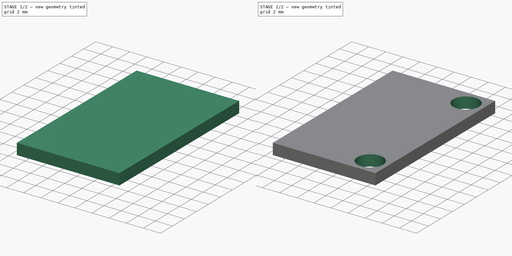
[diagram: build sequence overview — one tinted view per stage of 2, left to right]
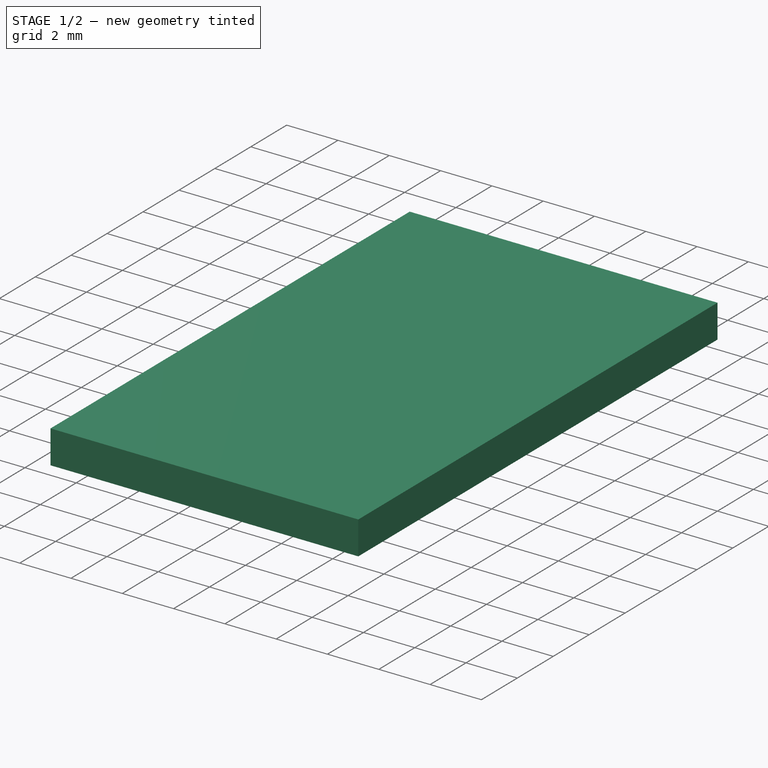
[diagram: stage 1 of 2 — iso view after this stage's code; geometry added in this stage tinted green]
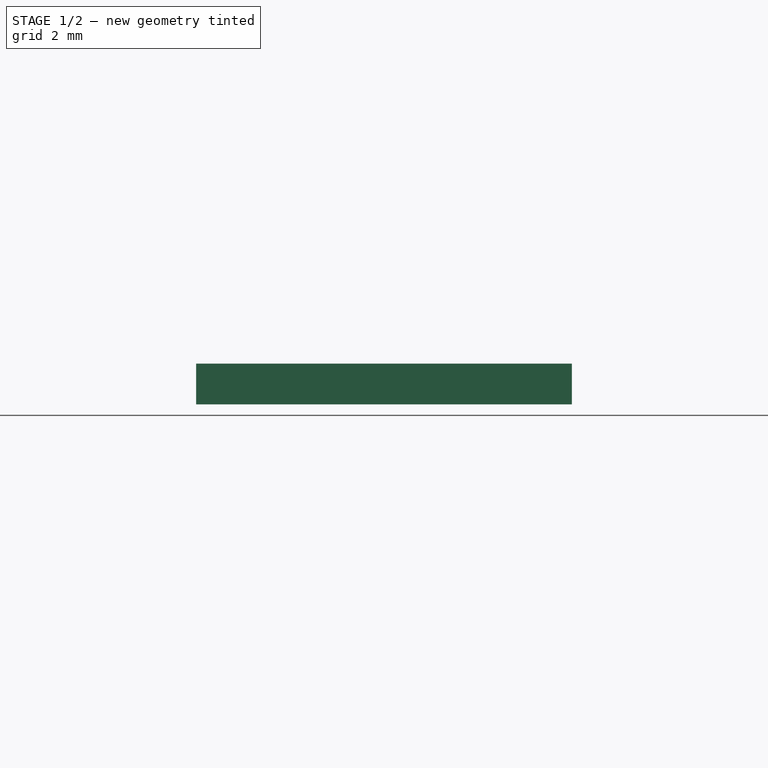
[diagram: stage 1 of 2 — front view after this stage's code; geometry added in this stage tinted green]
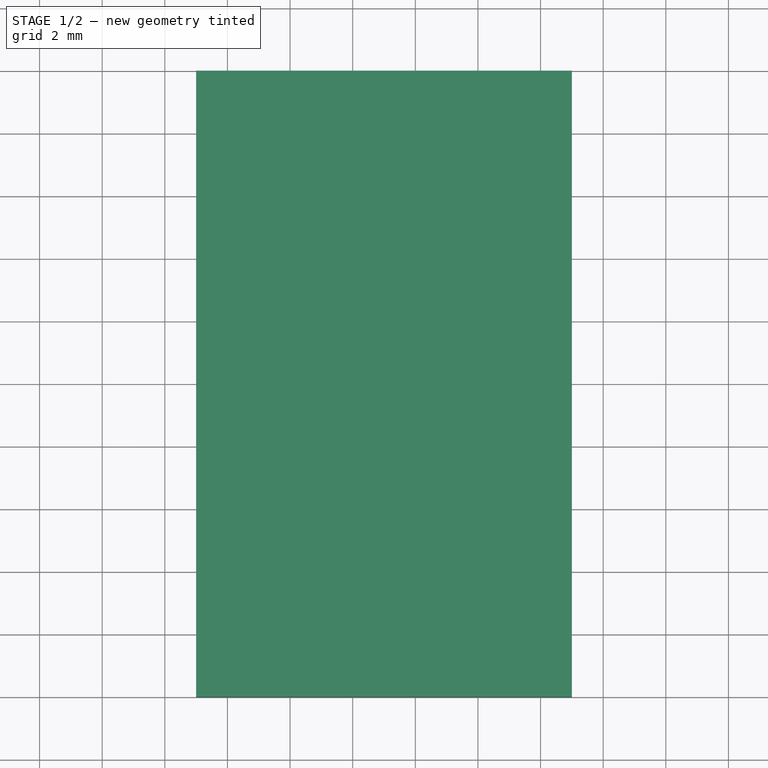
[diagram: stage 1 of 2 — top view after this stage's code; geometry added in this stage tinted green]
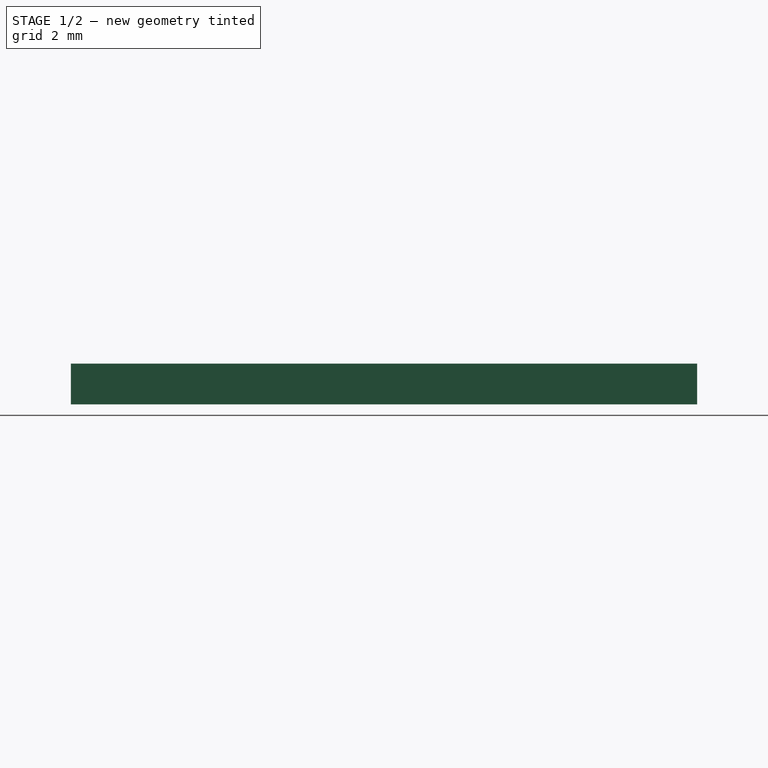
[diagram: stage 1 of 2 — right view after this stage's code; geometry added in this stage tinted green]
FCSTD DOCUMENT  (FreeCAD 1.0R38641 +678 (Git))
Label: spacer
License: All rights reserved
LicenseURL: https://en.wikipedia.org/wiki/All_rights_reserved
objects: Sketcher::SketchObject×2, PartDesign::Pad×1, PartDesign::Pocket×1, PartDesign::Body×1
note: 11 computed .brp shape members not serialized (recipe doc carries the construction recipe); baked Part::Feature solids carry a one-line shape summary decoded from their .brp

FEATURE [Sketcher::SketchObject] Sketch253
  ArcFitTolerance = 0
  FullyConstrained = true
  MakeInternals = false
  MapMode = 2
  Placement = pos=(0,0,-20) rot=(1,0,0;3.14159rad)
  sketch-geometry (8):
    g0: LineSegment [constr] StartX=-4 StartY=11 StartZ=0 EndX=-4 EndY=-11 EndZ=0
    g1: LineSegment [constr] StartX=-4 StartY=-11 StartZ=0 EndX=-29 EndY=-11 EndZ=0
    g2: LineSegment [constr] StartX=-4 StartY=11 StartZ=0 EndX=-29 EndY=11 EndZ=0
    g3: LineSegment [constr] StartX=-29 StartY=11 StartZ=0 EndX=-29 EndY=-11 EndZ=0
    g4: LineSegment StartX=-5 StartY=10 StartZ=0 EndX=-5 EndY=-10 EndZ=0
    g5: LineSegment StartX=-5 StartY=10 StartZ=0 EndX=-17 EndY=10 EndZ=0
    g6: LineSegment StartX=-17 StartY=10 StartZ=0 EndX=-17 EndY=-10 EndZ=0
    g7: LineSegment StartX=-17 StartY=-10 StartZ=0 EndX=-5 EndY=-10 EndZ=0
  constraints (24):
    c: Vertical(g0)
    c: Coincident(g1,g0)
    c: Horizontal(g1)
    c: Coincident(g2,g0)
    c: Horizontal(g2)
    c: Coincident(g3,g2)
    c: Coincident(g3,g1)
    c: Vertical(g3)
    c: Distance(g0) = 22
    c: Distance(g1) = 25
    c: Distance(g-1,g2) = 11
    c: Distance(g-1,g0) = 4
    c: Vertical(g4)
    c: Coincident(g5,g4)
    c: Horizontal(g5)
    c: Coincident(g6,g5)
    c: Vertical(g6)
    c: Coincident(g7,g6)
    c: Coincident(g7,g4)
    c: Horizontal(g7)
    c: DistanceY(g4,g4) = 20
    c: DistanceX(g5,g5) = 12
    c: Distance(g-1,g5) = 10
    c: Distance(g-1,g4) = 5
FEATURE [PartDesign::Pad] Pad126
  Direction = (0,-1e-16,-1)
  Length = 1.3
  Length2 = 10
  Placement = pos=(0,0,-20) rot=(1,0,0;3.14159rad)
  Profile = -> Sketch253
  ReferenceAxis = -> Sketch253 [N_Axis]
  Suppressed = false
  Type = 0
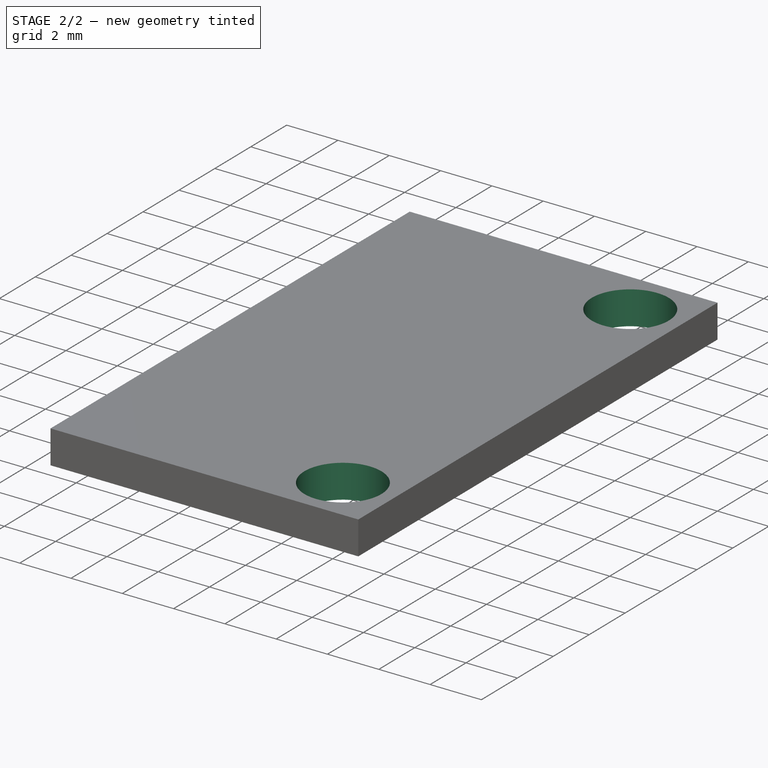
[diagram: stage 2 of 2 — iso view after this stage's code; geometry added in this stage tinted green]
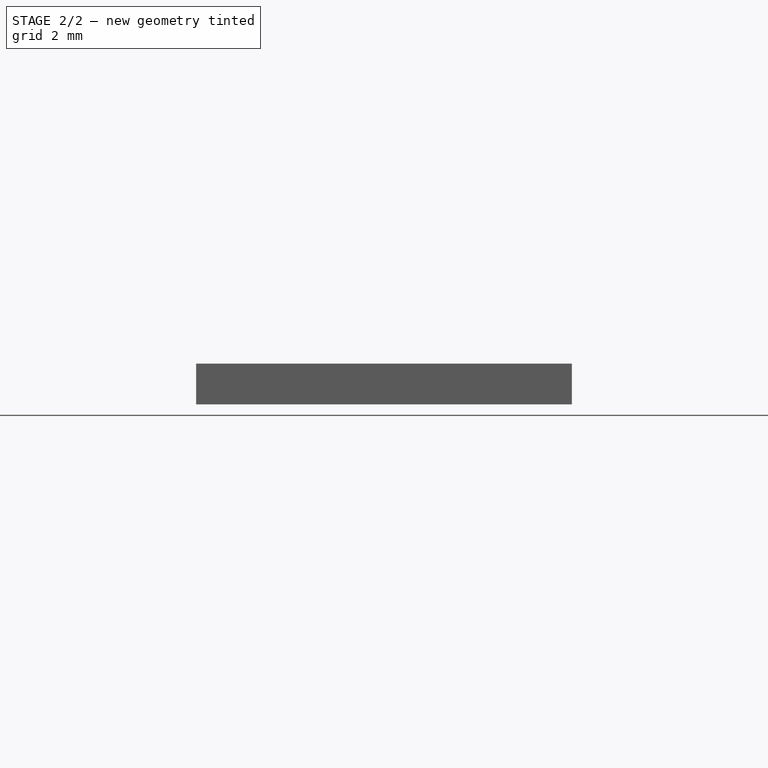
[diagram: stage 2 of 2 — front view after this stage's code; geometry added in this stage tinted green]
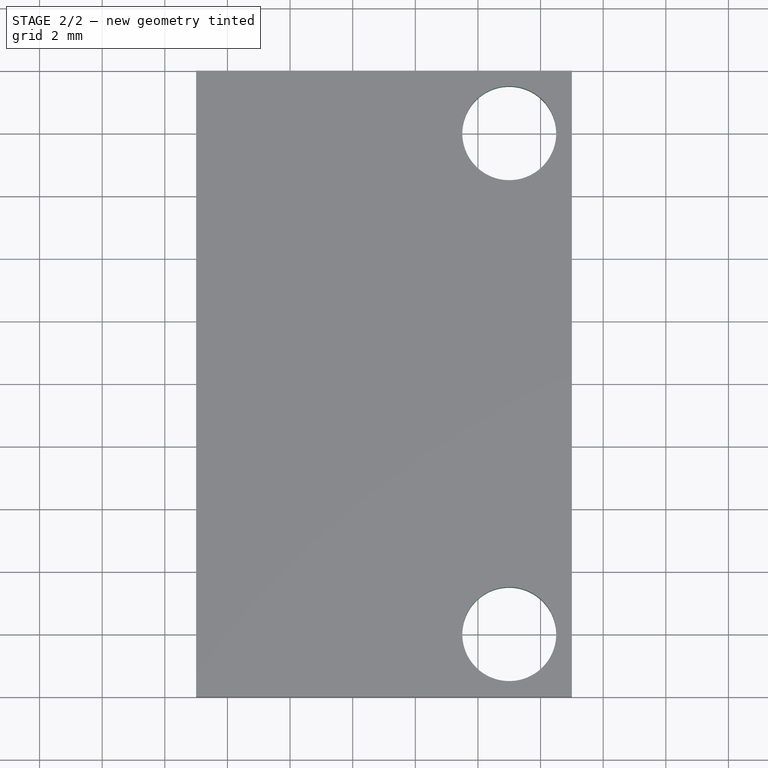
[diagram: stage 2 of 2 — top view after this stage's code; geometry added in this stage tinted green]
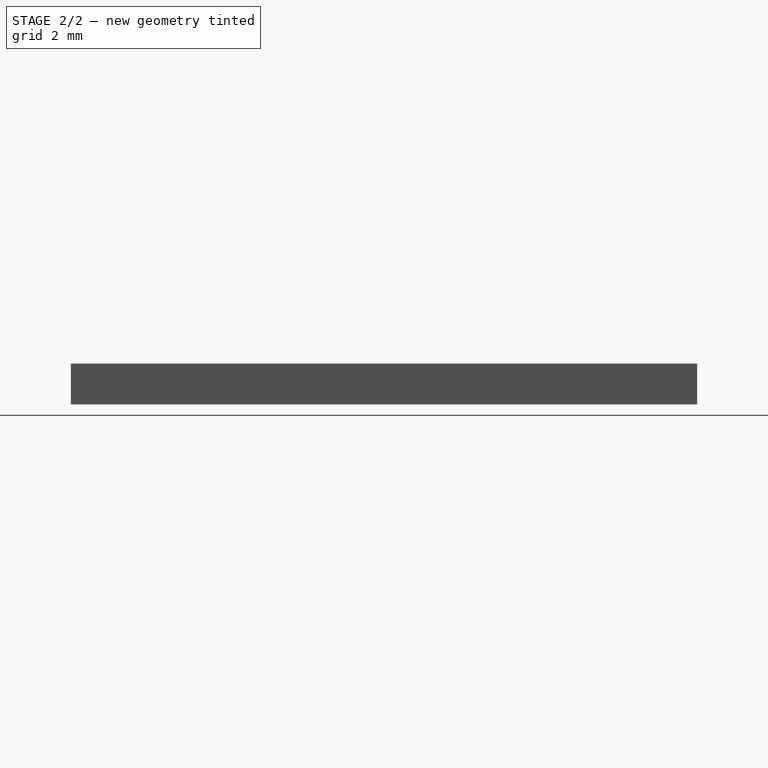
[diagram: stage 2 of 2 — right view after this stage's code; geometry added in this stage tinted green]
FEATURE [Sketcher::SketchObject] Sketch254
  ArcFitTolerance = 0
  FullyConstrained = true
  MakeInternals = false
  MapMode = 5
  Placement = pos=(0,0,-20) rot=(1,0,0;3.14159rad)
  sketch-geometry (6):
    g0: LineSegment [constr] StartX=-4 StartY=11 StartZ=0 EndX=-4 EndY=-11 EndZ=0
    g1: LineSegment [constr] StartX=-4 StartY=-11 StartZ=0 EndX=-29 EndY=-11 EndZ=0
    g2: LineSegment [constr] StartX=-4 StartY=11 StartZ=0 EndX=-29 EndY=11 EndZ=0
    g3: LineSegment [constr] StartX=-29 StartY=11 StartZ=0 EndX=-29 EndY=-11 EndZ=0
    g4: Circle CenterX=-7 CenterY=8 CenterZ=0 NormalX=0 NormalY=0 NormalZ=1 AngleXU=0 Radius=1.5
    g5: Circle CenterX=-7 CenterY=-8 CenterZ=0 NormalX=0 NormalY=0 NormalZ=1 AngleXU=0 Radius=1.5
  constraints (18):
    c: Vertical(g0)
    c: Coincident(g1,g0)
    c: Horizontal(g1)
    c: Coincident(g2,g0)
    c: Horizontal(g2)
    c: Coincident(g3,g2)
    c: Coincident(g3,g1)
    c: Vertical(g3)
    c: Distance(g0) = 22
    c: Distance(g1) = 25
    c: Distance(g-1,g2) = 11
    c: Distance(g-1,g0) = 4
    c: Diameter(g4) = 3
    c: DistanceY(g-1,g5) = -8
    c: DistanceY(g-1,g4) = 8
    c: DistanceX(g-2,g4) = -7
    c: DistanceX(g-2,g5) = -7
    c: Equal(g4,g5)
FEATURE [PartDesign::Pocket] Pocket110
  BaseFeature = -> Pad126
  Direction = (0,1e-16,1)
  Length = 3
  Length2 = 5
  Placement = pos=(0,0,-20) rot=(1,0,0;3.14159rad)
  Profile = -> Sketch254
  ReferenceAxis = -> Sketch254 [N_Axis]
  Reversed = true
  Suppressed = false
  Type = 0
FEATURE [PartDesign::Body] Body028  label="spacer"
  AllowCompound = false
  Group = -> [Sketch253,Pad126,Sketch254,Pocket110]
  Origin = -> Origin028
  Placement = pos=(-216,0,-9) rot=(0,0,1;0rad)
  Tip = -> Pocket110
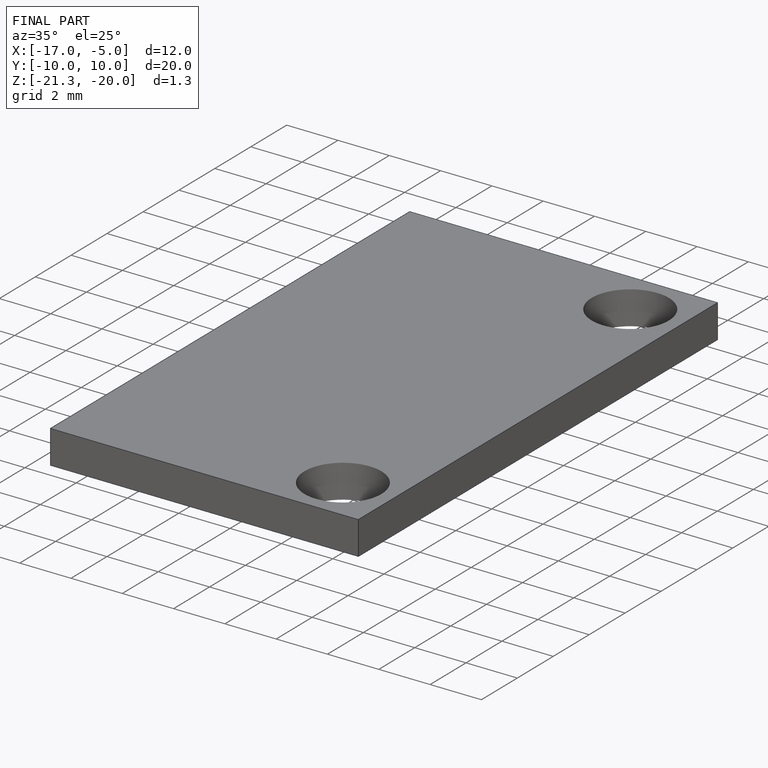
[diagram: finished part — iso view with bounding-box wireframe]
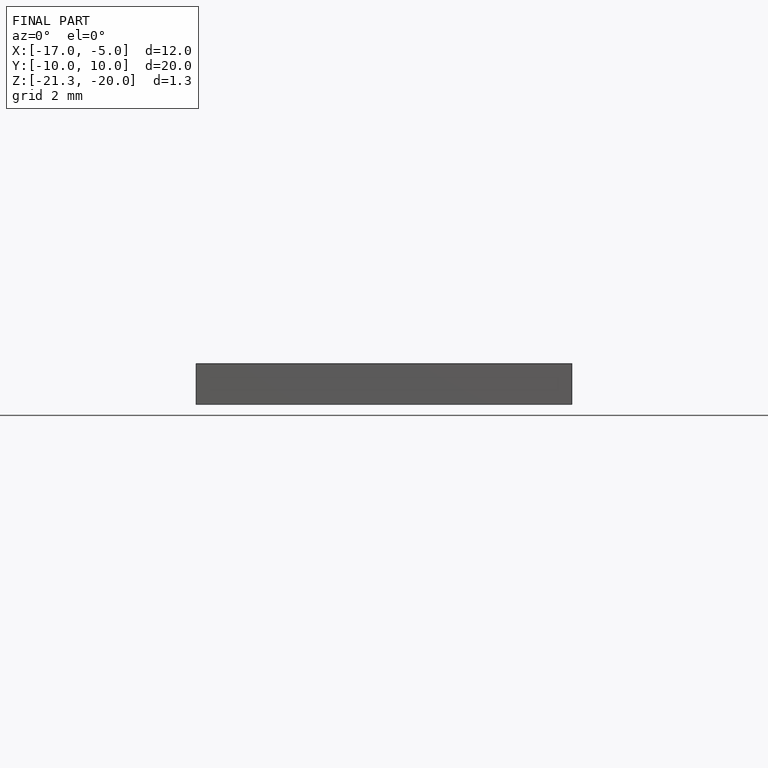
[diagram: finished part — front view with bounding-box wireframe]
